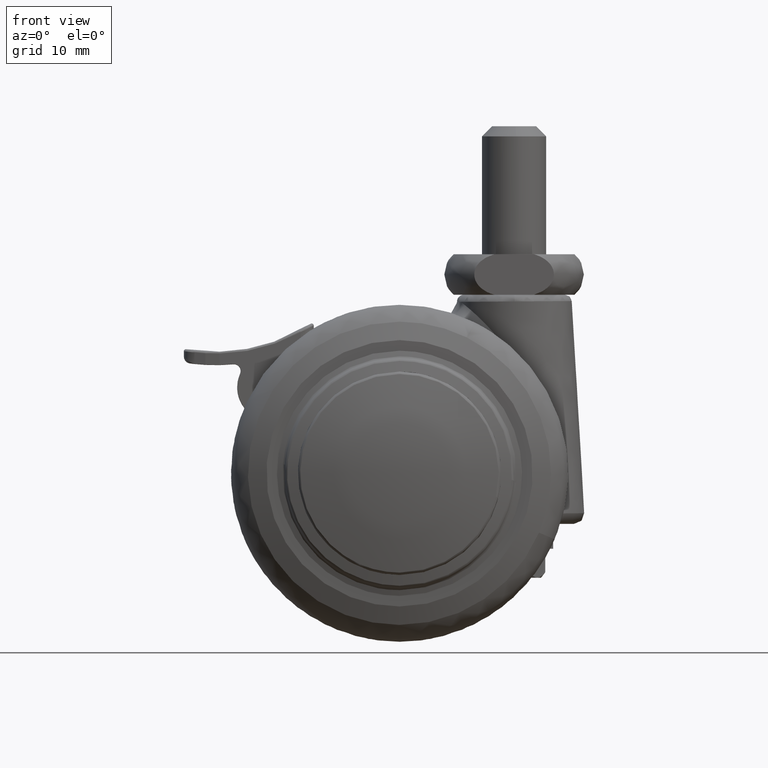
[diagram: clean part render]
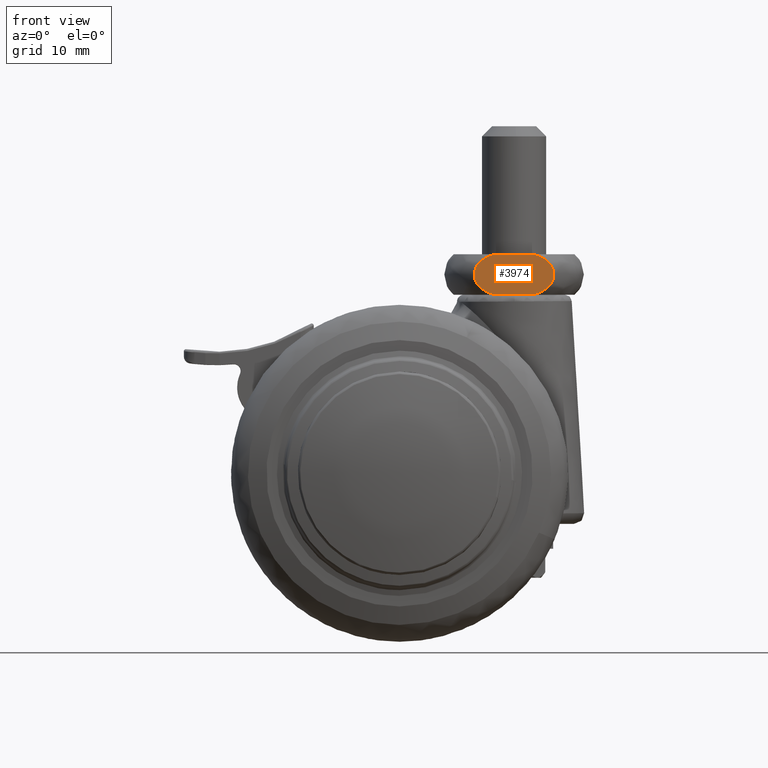
[diagram: same view with one face highlighted and labeled with its STEP entity id]
A machine part, front view. The second image highlights one B-rep face of the part: STEP entity #3974.
In plain terms, the highlighted face is a freeform B-spline surface patch.
Its self-contained STEP definition (entity closure, byte-faithful):
#3826=CARTESIAN_POINT('',(10.496581712875299,-8.500000000000000,26.200300006331329));
#3827=CARTESIAN_POINT('',(23.503418987800110,-8.500000000000000,26.200300006331329));
#3828=CARTESIAN_POINT('',(10.496581712875299,-8.500000000000000,32.799700149555413));
#3829=CARTESIAN_POINT('',(23.503418987800110,-8.500000000000000,32.799700149555413));
#3830=B_SPLINE_SURFACE_WITH_KNOTS('',1,1,((#3826,#3828),(#3827,#3829)),.UNSPECIFIED.,.F.,.F.,.U.,(2,2),(2,2),(0.0,13.006837274924809),(0.0,6.599400143224084),.UNSPECIFIED.);
#3831=CARTESIAN_POINT('',(14.041962204574659,-8.500000000000000,32.500000000000000));
#3832=VERTEX_POINT('',#3831);
#3833=CARTESIAN_POINT('',(14.041962204574640,-8.500000000000000,26.500000000000000));
#3834=VERTEX_POINT('',#3833);
#3835=CARTESIAN_POINT('',(14.041962204574659,-8.500000000000000,32.500000000000000));
#3836=CARTESIAN_POINT('',(13.921551545350910,-8.500000000000002,32.465097708456142));
#3837=CARTESIAN_POINT('',(13.801537075194600,-8.499999999999996,32.427014467722991));
#3838=CARTESIAN_POINT('',(13.563724652493310,-8.499999999999995,32.344009068565917));
#3839=CARTESIAN_POINT('',(13.446420749516760,-8.499999999999996,32.299269104727237));
#3840=CARTESIAN_POINT('',(13.099839533058409,-8.499999999999996,32.154279617891532));
#3841=CARTESIAN_POINT('',(12.875826102522190,-8.499999999999996,32.043395075815312));
#3842=CARTESIAN_POINT('',(12.607094430833580,-8.500000000000000,31.881989227635991));
#3843=CARTESIAN_POINT('',(12.553917631774770,-8.499999999999998,31.848557382990759));
#3844=CARTESIAN_POINT('',(12.448791113852231,-8.500000000000000,31.779214531184540));
#3845=CARTESIAN_POINT('',(12.396722178559680,-8.499999999999998,31.743214765034001));
#3846=CARTESIAN_POINT('',(12.243547055383599,-8.499999999999996,31.631949569802181));
#3847=CARTESIAN_POINT('',(12.145511922115350,-8.500000000000000,31.553501955798790));
#3848=CARTESIAN_POINT('',(11.958419964238219,-8.500000000000002,31.387212233200131));
#3849=CARTESIAN_POINT('',(11.869357411918740,-8.500000000000000,31.299376117821211));
#3850=CARTESIAN_POINT('',(11.743360579761219,-8.500000000000000,31.159672792683502));
#3851=CARTESIAN_POINT('',(11.702630974051530,-8.500000000000002,31.111776839619981));
#3852=CARTESIAN_POINT('',(11.623906071391440,-8.500000000000002,31.013123876936930));
#3853=CARTESIAN_POINT('',(11.585815803172309,-8.500000000000000,30.962213393133290));
#3854=CARTESIAN_POINT('',(11.477409532063870,-8.500000000000000,30.806924268173209));
#3855=CARTESIAN_POINT('',(11.412515230703420,-8.500000000000000,30.699539689533960));
#3856=CARTESIAN_POINT('',(11.298547433350100,-8.500000000000000,30.476495046236209));
#3857=CARTESIAN_POINT('',(11.249461345360940,-8.500000000000000,30.360841568150679));
#3858=CARTESIAN_POINT('',(11.189091253932640,-8.500000000000000,30.180425863087621));
#3859=CARTESIAN_POINT('',(11.171342843428290,-8.500000000000000,30.119538464834879));
#3860=CARTESIAN_POINT('',(11.140971996014921,-8.500000000000000,29.997521093486000));
#3861=CARTESIAN_POINT('',(11.128284198998850,-8.500000000000000,29.936200328437248));
#3862=CARTESIAN_POINT('',(11.097722251586729,-8.499999999999996,29.751300725147580));
#3863=CARTESIAN_POINT('',(11.087317963663139,-8.499999999999998,29.626788524841260));
#3864=CARTESIAN_POINT('',(11.087236746954749,-8.500000000000002,29.438080343030979));
#3865=CARTESIAN_POINT('',(11.089829093971250,-8.500000000000000,29.374594111734680));
#3866=CARTESIAN_POINT('',(11.100287243121370,-8.500000000000000,29.248191301163441));
#3867=CARTESIAN_POINT('',(11.108100967999899,-8.500000000000000,29.185606968216302));
#3868=CARTESIAN_POINT('',(11.138992104477561,-8.499999999999996,28.999632610519988));
#3869=CARTESIAN_POINT('',(11.169491741705270,-8.499999999999998,28.878014605033620));
#3870=CARTESIAN_POINT('',(11.229465273195331,-8.500000000000000,28.698983523754549));
#3871=CARTESIAN_POINT('',(11.251857219291860,-8.499999999999998,28.639820655552519));
#3872=CARTESIAN_POINT('',(11.301278203423600,-8.499999999999996,28.522845819953240));
#3873=CARTESIAN_POINT('',(11.328055890710891,-8.499999999999998,28.465614069134158));
#3874=CARTESIAN_POINT('',(11.414201732070790,-8.499999999999998,28.297449646859391));
#3875=CARTESIAN_POINT('',(11.479361590388690,-8.499999999999998,28.190035003941400));
#3876=CARTESIAN_POINT('',(11.587633161779330,-8.500000000000004,28.035310313111609));
#3877=CARTESIAN_POINT('',(11.625484856258399,-8.500000000000000,27.984805196056492));
#3878=CARTESIAN_POINT('',(11.704591985297601,-8.499999999999998,27.885862480285041));
#3879=CARTESIAN_POINT('',(11.745704260461350,-8.500000000000000,27.837619787031141));
#3880=CARTESIAN_POINT('',(11.872389396261260,-8.499999999999998,27.697489896692289));
#3881=CARTESIAN_POINT('',(11.961696761809900,-8.499999999999998,27.609676814539679));
#3882=CARTESIAN_POINT('',(12.148760161419069,-8.499999999999998,27.443816512410979));
#3883=CARTESIAN_POINT('',(12.246522654804661,-8.499999999999998,27.365776758804088));
#3884=CARTESIAN_POINT('',(12.398855790397301,-8.500000000000002,27.255293531809460));
#3885=CARTESIAN_POINT('',(12.450584063308989,-8.499999999999998,27.219564548195581));
#3886=CARTESIAN_POINT('',(12.555855278746920,-8.500000000000000,27.150204167507820));
#3887=CARTESIAN_POINT('',(12.609488985450101,-8.499999999999998,27.116523771281180));
#3888=CARTESIAN_POINT('',(12.879685151891181,-8.500000000000002,26.954488447138122));
#3889=CARTESIAN_POINT('',(13.103734906619991,-8.500000000000000,26.843948798476461));
#3890=CARTESIAN_POINT('',(13.563786602347349,-8.500000000000002,26.651775593601389));
#3891=CARTESIAN_POINT('',(13.799825807063771,-8.499999999999996,26.570232158847769));
#3892=CARTESIAN_POINT('',(14.041116785445279,-8.499999999999996,26.500245094179039));
#3893=CARTESIAN_POINT('',(14.041539515016650,-8.499999999999996,26.500122521191660));
#3894=CARTESIAN_POINT('',(14.041962204574640,-8.500000000000000,26.500000000000000));
#3895=B_SPLINE_CURVE_WITH_KNOTS('',3,(#3835,#3836,#3837,#3838,#3839,#3840,#3841,#3842,#3843,#3844,#3845,#3846,#3847,#3848,#3849,#3850,#3851,#3852,#3853,#3854,#3855,#3856,#3857,#3858,#3859,#3860,#3861,#3862,#3863,#3864,#3865,#3866,#3867,#3868,#3869,#3870,#3871,#3872,#3873,#3874,#3875,#3876,#3877,#3878,#3879,#3880,#3881,#3882,#3883,#3884,#3885,#3886,#3887,#3888,#3889,#3890,#3891,#3892,#3893,#3894),.UNSPECIFIED.,.F.,.U.,(4,2,2,2,2,2,2,2,2,2,2,2,2,2,2,2,2,2,2,2,2,2,2,2,2,2,2,2,2,4),(0.0,0.015624999999999,0.031249999999998,0.062499999999996,0.070312499999996,0.078124999999996,0.093749999999995,0.109374999999994,0.117187499999994,0.124999999999994,0.140624999999994,0.156249999999994,0.164062499999994,0.171874999999993,0.187499999999994,0.195312499999994,0.203124999999994,0.218749999999995,0.226562499999995,0.234374999999995,0.249999999999997,0.257812499999997,0.265624999999997,0.281249999999998,0.296874999999998,0.304687499999999,0.312499999999999,0.343749999999999,0.375000000000000,0.375054842110140),.UNSPECIFIED.);
#3896=EDGE_CURVE('',#3832,#3834,#3895,.T.);
#3897=ORIENTED_EDGE('',*,*,#3896,.T.);
#3898=CARTESIAN_POINT('',(19.958037793544900,-8.499999994596450,26.499999994954202));
#3899=VERTEX_POINT('',#3898);
#3900=CARTESIAN_POINT('',(14.041962204574640,-8.500000000000000,26.500000000000000));
#3901=CARTESIAN_POINT('',(19.958037793544900,-8.499999994596450,26.499999994954202));
#3902=QUASI_UNIFORM_CURVE('',1,(#3900,#3901),.UNSPECIFIED.,.F.,.U.);
#3903=EDGE_CURVE('',#3834,#3899,#3902,.T.);
#3904=ORIENTED_EDGE('',*,*,#3903,.T.);
#3905=CARTESIAN_POINT('',(19.958037795425351,-8.500000000000000,32.500000000000000));
#3906=VERTEX_POINT('',#3905);
#3907=CARTESIAN_POINT('',(19.958037793544900,-8.499999994596450,26.499999994954202));
#3908=CARTESIAN_POINT('',(19.958139266966899,-8.499999999999996,26.500029412569500));
#3909=CARTESIAN_POINT('',(19.958240741189961,-8.499999999999996,26.500058828295060));
#3910=CARTESIAN_POINT('',(20.078548743687040,-8.499999999999996,26.534936909705269));
#3911=CARTESIAN_POINT('',(20.198461755640690,-8.499999999999996,26.572989899224389));
#3912=CARTESIAN_POINT('',(20.435828224427009,-8.499999999999996,26.655830102794670));
#3913=CARTESIAN_POINT('',(20.552949798012168,-8.499999999999995,26.700486882556440));
#3914=CARTESIAN_POINT('',(20.899110621150079,-8.499999999999996,26.845242752684950));
#3915=CARTESIAN_POINT('',(21.123012851218299,-8.499999999999998,26.955988763142081));
#3916=CARTESIAN_POINT('',(21.391830257998361,-8.499999999999995,27.117344878305449));
#3917=CARTESIAN_POINT('',(21.445035418715261,-8.499999999999996,27.150773269467869));
#3918=CARTESIAN_POINT('',(21.550241283252490,-8.500000000000000,27.220126393566151));
#3919=CARTESIAN_POINT('',(21.602194004728130,-8.499999999999996,27.256028847414949));
#3920=CARTESIAN_POINT('',(21.754738033869760,-8.499999999999996,27.366744120687581));
#3921=CARTESIAN_POINT('',(21.852472499116491,-8.499999999999998,27.444844522736130));
#3922=CARTESIAN_POINT('',(22.039186990459250,-8.499999999999998,27.610526067737140));
#3923=CARTESIAN_POINT('',(22.128172908748098,-8.499999999999998,27.698100829657889));
#3924=CARTESIAN_POINT('',(22.254206196132039,-8.499999999999996,27.837526277214451));
#3925=CARTESIAN_POINT('',(22.294973129508332,-8.499999999999998,27.885348809290839));
#3926=CARTESIAN_POINT('',(22.373819087841770,-8.499999999999996,27.983904781025078));
#3927=CARTESIAN_POINT('',(22.411862620024969,-8.499999999999996,28.034623590819539));
#3928=CARTESIAN_POINT('',(22.520125666818789,-8.499999999999998,28.189235326777080));
#3929=CARTESIAN_POINT('',(22.585054227222649,-8.499999999999998,28.296242155982249));
#3930=CARTESIAN_POINT('',(22.699280845674839,-8.499999999999996,28.518737405196980));
#3931=CARTESIAN_POINT('',(22.748624489263459,-8.499999999999998,28.634314855385330));
#3932=CARTESIAN_POINT('',(22.829608118158951,-8.499999999999996,28.874615748585541));
#3933=CARTESIAN_POINT('',(22.860261863930411,-8.499999999999998,28.996410278129691));
#3934=CARTESIAN_POINT('',(22.901690135372341,-8.500000000000000,29.243321441157718));
#3935=CARTESIAN_POINT('',(22.912471112325360,-8.499999999999996,29.368436996539380));
#3936=CARTESIAN_POINT('',(22.912796695504660,-8.499999999999995,29.527029101747519));
#3937=CARTESIAN_POINT('',(22.912195278235359,-8.499999999999995,29.558933879020849));
#3938=CARTESIAN_POINT('',(22.909685980719001,-8.499999999999995,29.622193625049199));
#3939=CARTESIAN_POINT('',(22.903963155167851,-8.499999999999995,29.716699144287968));
#3940=CARTESIAN_POINT('',(22.892485632230859,-8.499999999999996,29.810076274369209));
#3941=CARTESIAN_POINT('',(22.862084869598458,-8.499999999999998,29.995370567917131));
#3942=CARTESIAN_POINT('',(22.831917095672559,-8.499999999999998,30.116958773603571));
#3943=CARTESIAN_POINT('',(22.772177219106531,-8.499999999999995,30.296500212425229));
#3944=CARTESIAN_POINT('',(22.749740368100721,-8.499999999999995,30.356106580369499));
#3945=CARTESIAN_POINT('',(22.700507302471550,-8.499999999999996,30.473200160246591));
#3946=CARTESIAN_POINT('',(22.673822689878779,-8.499999999999995,30.530483031967851));
#3947=CARTESIAN_POINT('',(22.587958784999149,-8.499999999999998,30.698780792986351));
#3948=CARTESIAN_POINT('',(22.522990692842079,-8.499999999999996,30.806257825722462));
#3949=CARTESIAN_POINT('',(22.415028376032279,-8.499999999999996,30.961050021962240));
#3950=CARTESIAN_POINT('',(22.377283308235491,-8.499999999999998,31.011573236260510));
#3951=CARTESIAN_POINT('',(22.298398658336591,-8.499999999999998,31.110545088955941));
#3952=CARTESIAN_POINT('',(22.257148192599029,-8.499999999999998,31.159102216071410));
#3953=CARTESIAN_POINT('',(22.130065966639300,-8.499999999999996,31.300028348632910));
#3954=CARTESIAN_POINT('',(22.040535192078991,-8.499999999999996,31.388214325772161));
#3955=CARTESIAN_POINT('',(21.853153813775648,-8.499999999999996,31.554613506197668));
#3956=CARTESIAN_POINT('',(21.755296327774410,-8.499999999999996,31.632818459890942));
#3957=CARTESIAN_POINT('',(21.552152139262098,-8.499999999999996,31.780323148849291));
#3958=CARTESIAN_POINT('',(21.446747987583411,-8.499999999999998,31.849686343592310));
#3959=CARTESIAN_POINT('',(21.121083044152360,-8.499999999999998,32.045179032612772));
#3960=CARTESIAN_POINT('',(20.896313281175420,-8.499999999999998,32.156053286564173));
#3961=CARTESIAN_POINT('',(20.435273866234930,-8.499999999999998,32.348594611220662));
#3962=CARTESIAN_POINT('',(20.198965932411010,-8.499999999999996,32.430164454438362));
#3963=CARTESIAN_POINT('',(19.958037795425358,-8.499999999999996,32.500000000000000));
#3964=B_SPLINE_CURVE_WITH_KNOTS('',3,(#3907,#3908,#3909,#3910,#3911,#3912,#3913,#3914,#3915,#3916,#3917,#3918,#3919,#3920,#3921,#3922,#3923,#3924,#3925,#3926,#3927,#3928,#3929,#3930,#3931,#3932,#3933,#3934,#3935,#3936,#3937,#3938,#3939,#3940,#3941,#3942,#3943,#3944,#3945,#3946,#3947,#3948,#3949,#3950,#3951,#3952,#3953,#3954,#3955,#3956,#3957,#3958,#3959,#3960,#3961,#3962,#3963),.UNSPECIFIED.,.F.,.U.,(4,2,2,2,2,2,2,2,2,2,2,2,2,2,2,2,1,2,2,2,2,2,2,2,2,2,2,2,4),(0.624986809961873,0.625000000000006,0.640625000000006,0.656250000000006,0.687500000000006,0.695312500000005,0.703125000000005,0.718750000000004,0.734375000000004,0.742187500000004,0.750000000000003,0.765625000000003,0.781250000000003,0.796875000000002,0.812500000000002,0.816406250000002,0.820312500000003,0.828125000000003,0.843750000000003,0.851562500000003,0.859375000000003,0.875000000000003,0.882812500000003,0.890625000000002,0.906250000000002,0.921875000000002,0.937500000000001,0.968750000000001,1.0),.UNSPECIFIED.);
#3965=EDGE_CURVE('',#3899,#3906,#3964,.T.);
#3966=ORIENTED_EDGE('',*,*,#3965,.T.);
#3967=CARTESIAN_POINT('',(14.041962204574659,-8.500000000000000,32.500000000000000));
#3968=CARTESIAN_POINT('',(19.958037795425351,-8.500000000000000,32.500000000000000));
#3969=QUASI_UNIFORM_CURVE('',1,(#3967,#3968),.UNSPECIFIED.,.F.,.U.);
#3970=EDGE_CURVE('',#3832,#3906,#3969,.T.);
#3971=ORIENTED_EDGE('',*,*,#3970,.F.);
#3972=EDGE_LOOP('',(#3897,#3904,#3966,#3971));
#3973=FACE_OUTER_BOUND('',#3972,.T.);
#3974=ADVANCED_FACE('',(#3973),#3830,.T.);